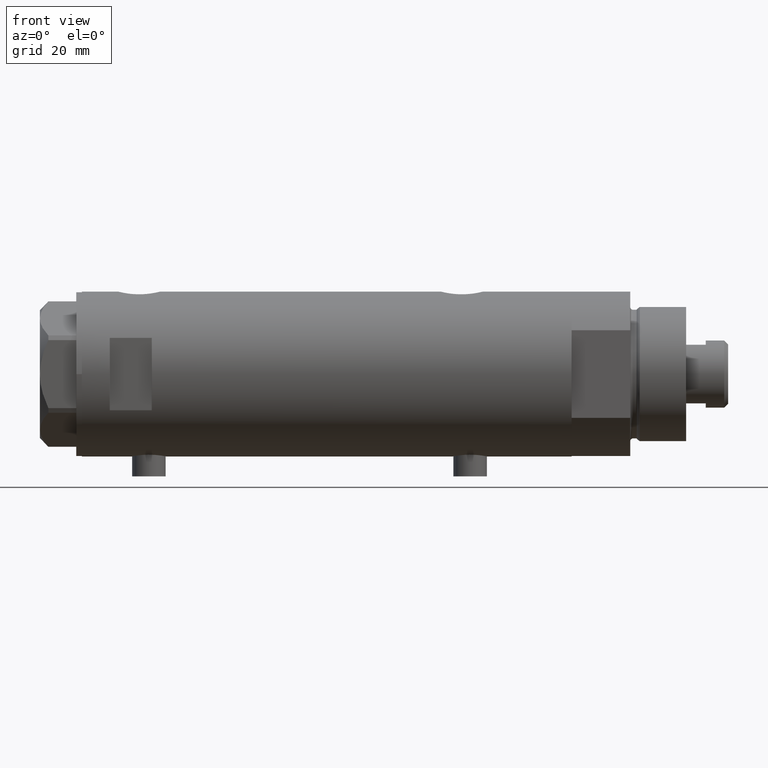
[diagram: clean part render]
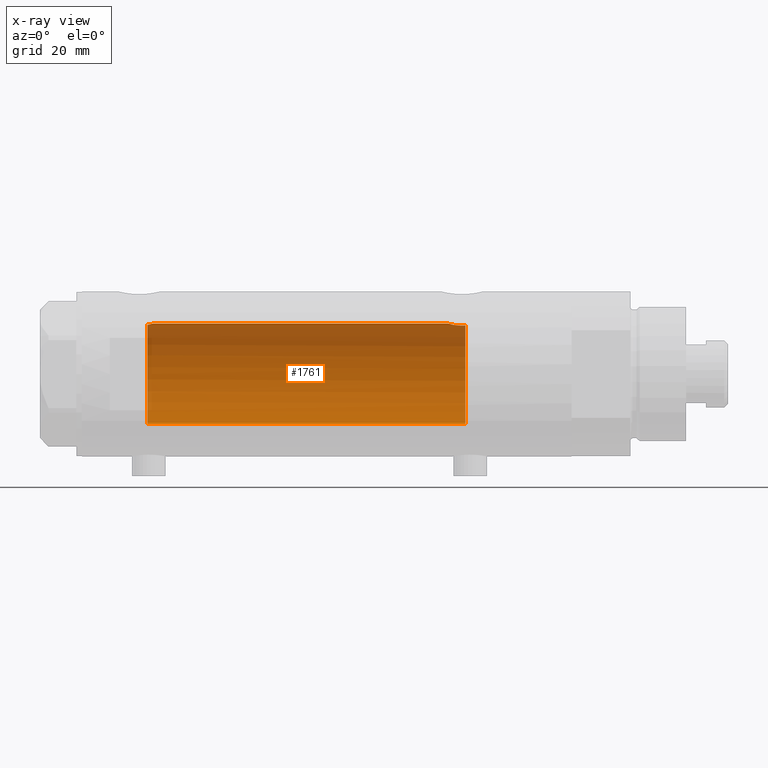
[diagram: x-ray — body ghosted, one internal face saturated and labeled with its STEP entity id]
A machine part, front view, then the same camera in x-ray: the body is ghosted and one INTERNAL B-rep face — a face not visible from any outside direction — is saturated and labeled: STEP entity #1761.
In plain terms, the highlighted cylindrical surface (partial cylindrical patch) has radius 18 mm, axis along (1, 0, -0).
Its self-contained STEP definition (entity closure, byte-faithful):
#80 = VECTOR ( 'NONE', #3977, 1000.000000000000000 ) ;
#148 = EDGE_CURVE ( 'NONE', #3643, #914, #1733, .T. ) ;
#168 = VERTEX_POINT ( 'NONE', #1412 ) ;
#189 = CARTESIAN_POINT ( 'NONE',  ( 17.37157951943345680, 4.714681855650495912, -49.60000000000000142 ) ) ;
#235 = CARTESIAN_POINT ( 'NONE',  ( 18.00000000000000000, 5.958021437579254357E-16, -43.53499999999999659 ) ) ;
#268 = CARTESIAN_POINT ( 'NONE',  ( 0.000000000000000000, 0.000000000000000000, 87.59999999999998010 ) ) ;
#334 = CARTESIAN_POINT ( 'NONE',  ( 17.91189082287941758, 1.809824880389073964, -43.86912370284670004 ) ) ;
#377 = EDGE_LOOP ( 'NONE', ( #1784, #1051, #2267, #1637, #2049, #3352 ) ) ;
#386 = VERTEX_POINT ( 'NONE', #4155 ) ;
#407 = CARTESIAN_POINT ( 'NONE',  ( 0.000000000000000000, 0.000000000000000000, -49.60000000000000853 ) ) ;
#564 = AXIS2_PLACEMENT_3D ( 'NONE', #407, #4177, #1459 ) ;
#670 = CARTESIAN_POINT ( 'NONE',  ( -18.00000000000000000, 0.000000000000000000, 64.09999999999999432 ) ) ;
#674 = CARTESIAN_POINT ( 'NONE',  ( 17.98587882862718601, 0.7362002489460847121, -43.58746722239206406 ) ) ;
#701 = VERTEX_POINT ( 'NONE', #670 ) ;
#714 = CARTESIAN_POINT ( 'NONE',  ( 17.41328271218089796, 4.558641711475903691, -46.69087254718661484 ) ) ;
#729 = CIRCLE ( 'NONE', #2394, 18.00000000000000000 ) ;
#774 = CARTESIAN_POINT ( 'NONE',  ( 17.63704841537101586, 3.603891093161675663, 63.81145343596541863 ) ) ;
#787 = CARTESIAN_POINT ( 'NONE',  ( 17.33262691996381477, 4.855935766715063551, -48.87488940890202826 ) ) ;
#831 = CARTESIAN_POINT ( 'NONE',  ( 17.32928165965087786, 4.867855194001448282, -48.31899018256648048 ) ) ;
#854 = DIRECTION ( 'NONE',  ( 0.000000000000000000, 0.000000000000000000, 1.000000000000000000 ) ) ;
#914 = VERTEX_POINT ( 'NONE', #189 ) ;
#1042 = CARTESIAN_POINT ( 'NONE',  ( 17.76085061188611292, 2.927954048074872251, -44.51043039029094217 ) ) ;
#1051 = ORIENTED_EDGE ( 'NONE', *, *, #3491, .F. ) ;
#1061 = CARTESIAN_POINT ( 'NONE',  ( 17.49030773641653269, 4.256160900234551292, -46.01469509681786718 ) ) ;
#1074 = CARTESIAN_POINT ( 'NONE',  ( 17.89217382667230183, 1.974183297225222233, 62.64981302266167518 ) ) ;
#1143 = CARTESIAN_POINT ( 'NONE',  ( 17.94167814235965608, 1.458276351914870483, 62.45504464479716944 ) ) ;
#1267 = LINE ( 'NONE', #4385, #80 ) ;
#1381 = CARTESIAN_POINT ( 'NONE',  ( 17.85236636886078898, 2.306694554785103435, -44.11264586133009402 ) ) ;
#1409 = CARTESIAN_POINT ( 'NONE',  ( -18.00000000000000000, 0.000000000000000000, 87.59999999999998010 ) ) ;
#1412 = CARTESIAN_POINT ( 'NONE',  ( 18.00000000000000000, 0.000000000000000000, 62.23499999999999233 ) ) ;
#1418 = CARTESIAN_POINT ( 'NONE',  ( 17.68814035493779713, 3.348626323852637476, 63.55183600219631046 ) ) ;
#1459 = DIRECTION ( 'NONE',  ( -1.000000000000000000, 0.000000000000000000, 0.000000000000000000 ) ) ;
#1497 = CARTESIAN_POINT ( 'NONE',  ( 17.34671983132639994, 4.806279138776326398, -49.24012329268314403 ) ) ;
#1615 = DIRECTION ( 'NONE',  ( -0.000000000000000000, -0.000000000000000000, -1.000000000000000000 ) ) ;
#1637 = ORIENTED_EDGE ( 'NONE', *, *, #3630, .T. ) ;
#1658 = FACE_OUTER_BOUND ( 'NONE', #377, .T. ) ;
#1733 = CIRCLE ( 'NONE', #564, 18.00000000000000000 ) ;
#1761 = ADVANCED_FACE ( 'NONE', ( #1658 ), #2339, .F. ) ;
#1766 = EDGE_CURVE ( 'NONE', #168, #2775, #1267, .T. ) ;
#1784 = ORIENTED_EDGE ( 'NONE', *, *, #1766, .F. ) ;
#1828 = CARTESIAN_POINT ( 'NONE',  ( 17.83158514913445458, 2.461498934476296974, 62.89965995681277633 ) ) ;
#1923 = CARTESIAN_POINT ( 'NONE',  ( 0.000000000000000000, 0.000000000000000000, 64.09999999999999432 ) ) ;
#1955 = AXIS2_PLACEMENT_3D ( 'NONE', #268, #1615, #2978 ) ;
#2049 = ORIENTED_EDGE ( 'NONE', *, *, #148, .T. ) ;
#2062 = CARTESIAN_POINT ( 'NONE',  ( 17.97733715731491344, 0.9209699998971166979, -43.61935966604425374 ) ) ;
#2081 = CARTESIAN_POINT ( 'NONE',  ( 17.63589737371338373, 3.604488512479872231, -45.12742655266250580 ) ) ;
#2130 = CARTESIAN_POINT ( 'NONE',  ( 17.34085862114804044, 4.826483754267691495, -47.76145238513613833 ) ) ;
#2185 = CARTESIAN_POINT ( 'NONE',  ( 17.98843015915092636, 0.7391836159806548512, 62.27731130524779246 ) ) ;
#2201 = EDGE_CURVE ( 'NONE', #386, #701, #729, .T. ) ;
#2267 = ORIENTED_EDGE ( 'NONE', *, *, #2201, .T. ) ;
#2339 = CYLINDRICAL_SURFACE ( 'NONE', #1955, 18.00000000000000000 ) ;
#2394 = AXIS2_PLACEMENT_3D ( 'NONE', #1923, #854, #3340 ) ;
#2400 = CARTESIAN_POINT ( 'NONE',  ( 18.00000000000000355, 0.1844036484100904649, -43.53500000000000369 ) ) ;
#2462 = CARTESIAN_POINT ( 'NONE',  ( 17.38237957915196574, 4.675094569549003154, -47.04138980228257338 ) ) ;
#2473 = CARTESIAN_POINT ( 'NONE',  ( -18.00000000000000000, 0.000000000000000000, -49.60000000000000853 ) ) ;
#2499 = EDGE_CURVE ( 'NONE', #2775, #914, #3041, .T. ) ;
#2504 = CARTESIAN_POINT ( 'NONE',  ( 17.35631194664785681, 4.771042759406570077, -47.39667763205954998 ) ) ;
#2510 = CARTESIAN_POINT ( 'NONE',  ( 17.95540531162506781, 1.279032093992333419, 62.40250861430338603 ) ) ;
#2684 = CARTESIAN_POINT ( 'NONE',  ( 18.00000000000000000, 5.958021437579254357E-16, -43.53499999999999659 ) ) ;
#2753 = CARTESIAN_POINT ( 'NONE',  ( 17.83051055968251930, 2.469307448774133551, -44.20420614498793555 ) ) ;
#2775 = VERTEX_POINT ( 'NONE', #235 ) ;
#2779 = CARTESIAN_POINT ( 'NONE',  ( 17.61032289555864239, 3.726910670425183536, -45.26756985850233406 ) ) ;
#2788 = CARTESIAN_POINT ( 'NONE',  ( 17.78617492856930227, 2.770629413254892537, 63.09682049650069757 ) ) ;
#2978 = DIRECTION ( 'NONE',  ( -1.000000000000000000, 0.000000000000000000, 0.000000000000000000 ) ) ;
#3041 = B_SPLINE_CURVE_WITH_KNOTS ( 'NONE', 3,
 ( #2684, #2400, #3772, #674, #2062, #3435, #334, #1381, #2753, #4134, #1042, #3129, #3790, #2081, #2779, #4153, #1061, #3811, #714, #2462, #2504, #2130, #3836, #831, #787, #1497, #3503 ),
 .UNSPECIFIED., .F., .F.,
 ( 4, 2, 2, 2, 2, 2, 2, 2, 2, 2, 1, 2, 2, 4 ),
 ( 0.01528157848519461244, 0.01583467956029641424, 0.01638778063539821431, 0.01749398278560182138, 0.01804708386070362491, 0.01860018493580542845, 0.01915328601090723198, 0.01970638708600903899, 0.02081258923621264259, 0.02136569031131445653, 0.02191879138641626701, 0.02247189246151808095, 0.02302499353661989143, 0.02413119568682349503 ),
 .UNSPECIFIED. ) ;
#3129 = CARTESIAN_POINT ( 'NONE',  ( 17.71174132276682300, 3.211689381115077513, -44.74121359250872132 ) ) ;
#3184 = CARTESIAN_POINT ( 'NONE',  ( 17.91007218376326193, 1.805463612197656831, 62.57866376881661097 ) ) ;
#3340 = DIRECTION ( 'NONE',  ( 1.000000000000000000, 0.000000000000000000, 0.000000000000000000 ) ) ;
#3352 = ORIENTED_EDGE ( 'NONE', *, *, #2499, .F. ) ;
#3435 = CARTESIAN_POINT ( 'NONE',  ( 17.94405978035184290, 1.463580074031382683, -43.74553017623723861 ) ) ;
#3452 = DIRECTION ( 'NONE',  ( -0.000000000000000000, -0.000000000000000000, -1.000000000000000000 ) ) ;
#3491 = EDGE_CURVE ( 'NONE', #386, #168, #4273, .T. ) ;
#3503 = CARTESIAN_POINT ( 'NONE',  ( 17.37157951943345680, 4.714681855650495912, -49.60000000000000142 ) ) ;
#3559 = CARTESIAN_POINT ( 'NONE',  ( 18.00000000000000000, 0.000000000000000000, 62.23499999999999233 ) ) ;
#3630 = EDGE_CURVE ( 'NONE', #701, #3643, #4173, .T. ) ;
#3643 = VERTEX_POINT ( 'NONE', #2473 ) ;
#3681 = VECTOR ( 'NONE', #3452, 1000.000000000000000 ) ;
#3772 = CARTESIAN_POINT ( 'NONE',  ( 17.99716691696285764, 0.3685254503903832024, -43.54545042928660337 ) ) ;
#3790 = CARTESIAN_POINT ( 'NONE',  ( 17.68656644271517919, 3.347025706529859423, -44.86453774950911111 ) ) ;
#3811 = CARTESIAN_POINT ( 'NONE',  ( 17.43128843254318383, 4.489613141718952427, -46.51700003713170872 ) ) ;
#3836 = CARTESIAN_POINT ( 'NONE',  ( 17.33118376015917050, 4.861110225087390546, -48.13112109378173642 ) ) ;
#3867 = CARTESIAN_POINT ( 'NONE',  ( 17.58783030962034388, 3.829911878881820719, 64.09999999999999432 ) ) ;
#3887 = CARTESIAN_POINT ( 'NONE',  ( 17.99999999999999645, 0.3728474842072341811, 62.23499999999999943 ) ) ;
#3977 = DIRECTION ( 'NONE',  ( -0.000000000000000000, -0.000000000000000000, -1.000000000000000000 ) ) ;
#4134 = CARTESIAN_POINT ( 'NONE',  ( 17.78478726694685363, 2.779555353823082608, -44.40297143050466389 ) ) ;
#4153 = CARTESIAN_POINT ( 'NONE',  ( 17.53642083926971296, 4.065376572064633542, -45.70260027543618264 ) ) ;
#4155 = CARTESIAN_POINT ( 'NONE',  ( 17.58783030962034388, 3.829911878881820719, 64.09999999999999432 ) ) ;
#4163 = CARTESIAN_POINT ( 'NONE',  ( 17.85293122918850273, 2.302201220737759346, 62.81031080804813627 ) ) ;
#4173 = LINE ( 'NONE', #1409, #3681 ) ;
#4177 = DIRECTION ( 'NONE',  ( 0.000000000000000000, 0.000000000000000000, -1.000000000000000000 ) ) ;
#4229 = CARTESIAN_POINT ( 'NONE',  ( 17.76196254920472128, 2.921230608637938264, 63.20535341986155231 ) ) ;
#4273 = B_SPLINE_CURVE_WITH_KNOTS ( 'NONE', 3,
 ( #3867, #774, #1418, #4229, #2788, #1828, #4163, #1074, #3184, #1143, #2510, #2185, #3887, #3559 ),
 .UNSPECIFIED., .F., .F.,
 ( 4, 2, 2, 2, 2, 2, 4 ),
 ( 0.02614985543880327459, 0.02725214354003947445, 0.02780328759065756050, 0.02835443164127564308, 0.02890557569189372913, 0.02945671974251181519, 0.03055900784374798729 ),
 .UNSPECIFIED. ) ;
#4385 = CARTESIAN_POINT ( 'NONE',  ( 18.00000000000000000, 2.204364238465235428E-15, 87.59999999999998010 ) ) ;